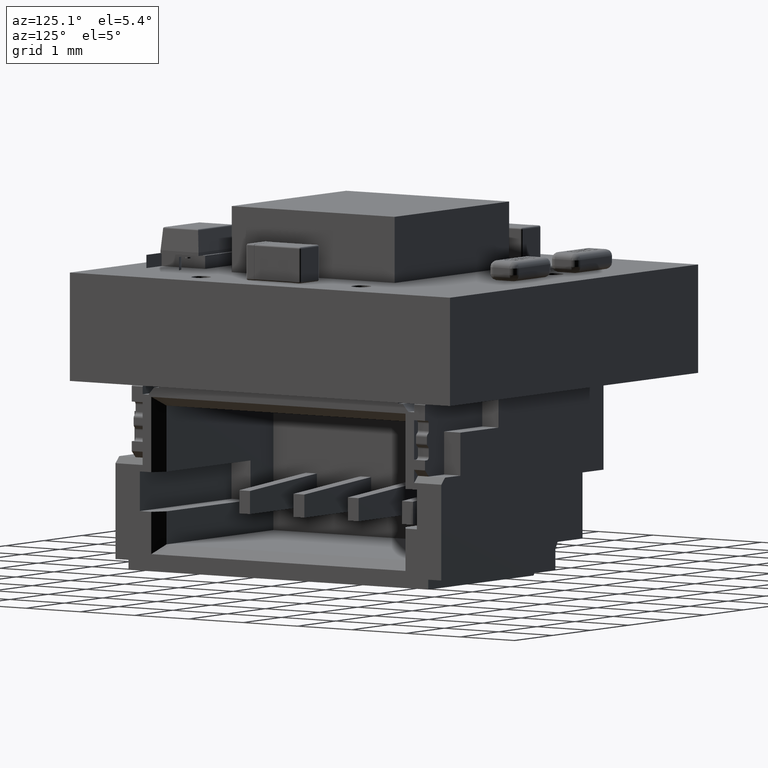
[diagram: clean part render]
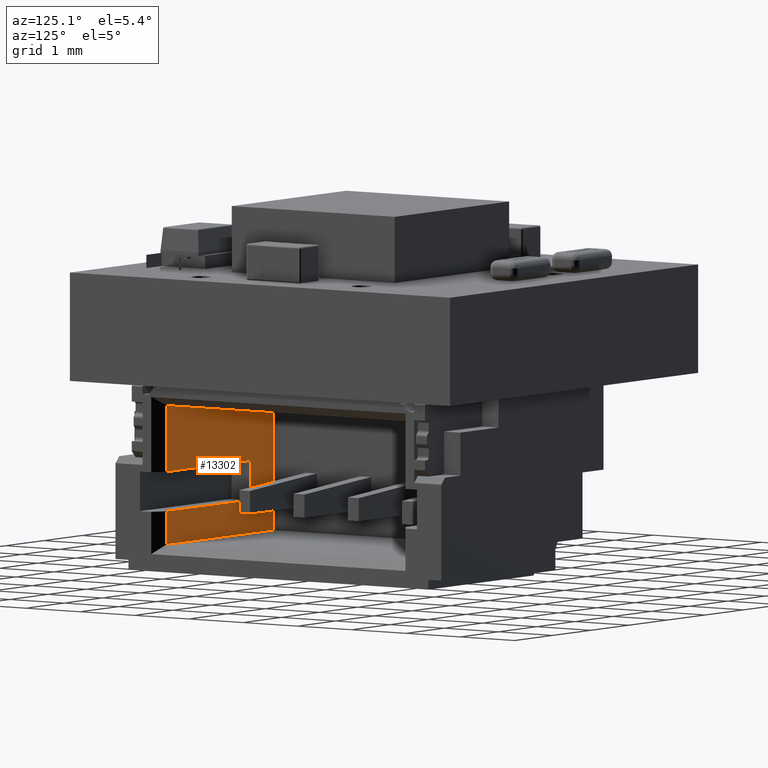
[diagram: same view with one face highlighted and labeled with its STEP entity id]
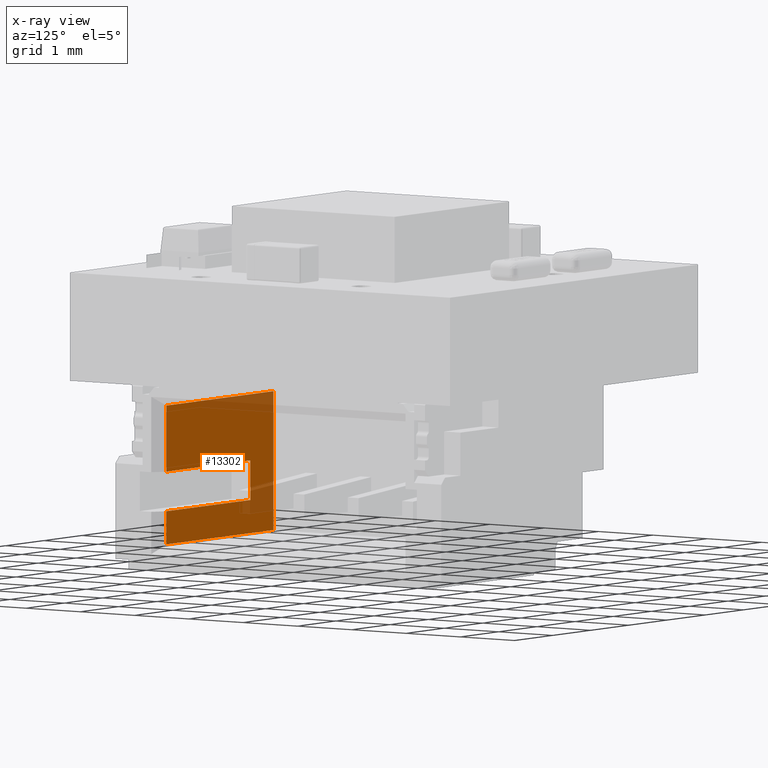
[diagram: x-ray of the same camera — body ghosted, the highlighted face saturated]
A machine part, auxiliary view. The second image highlights one B-rep face of the part: STEP entity #13302.
The next image is the same camera in x-ray: the body ghosted, the highlighted face saturated — about 15% of this face is hidden behind the body in this view.
In plain terms, the highlighted planar face has unit normal (-0, -1, -0).
Its self-contained STEP definition (entity closure, byte-faithful):
#10956 = VERTEX_POINT('',#10957);
#10957 = CARTESIAN_POINT('',(2.2,0.755,0.895));
#10963 = EDGE_CURVE('',#10956,#10964,#10966,.T.);
#10964 = VERTEX_POINT('',#10965);
#10965 = CARTESIAN_POINT('',(2.2,2.855,0.895));
#10966 = LINE('',#10967,#10968);
#10967 = CARTESIAN_POINT('',(2.2,2.855,0.895));
#10968 = VECTOR('',#10969,1.);
#10969 = DIRECTION('',(2.438091212181E-029,1.,3.491483361109E-015));
#11132 = VERTEX_POINT('',#11133);
#11133 = CARTESIAN_POINT('',(2.2,0.755,3.695));
#11139 = EDGE_CURVE('',#10956,#11132,#11140,.T.);
#11140 = LINE('',#11141,#11142);
#11141 = CARTESIAN_POINT('',(2.2,0.755,0.895));
#11142 = VECTOR('',#11143,1.);
#11143 = DIRECTION('',(-0.E+000,-3.491483361109E-015,1.));
#11161 = EDGE_CURVE('',#11162,#10964,#11164,.T.);
#11162 = VERTEX_POINT('',#11163);
#11163 = CARTESIAN_POINT('',(2.2,2.855,3.695));
#11164 = LINE('',#11165,#11166);
#11165 = CARTESIAN_POINT('',(2.2,2.855,0.895));
#11166 = VECTOR('',#11167,1.);
#11167 = DIRECTION('',(-0.E+000,3.491483361109E-015,-1.));
#12690 = VERTEX_POINT('',#12691);
#12691 = CARTESIAN_POINT('',(2.2,2.355,1.495));
#12697 = EDGE_CURVE('',#12690,#12698,#12700,.T.);
#12698 = VERTEX_POINT('',#12699);
#12699 = CARTESIAN_POINT('',(2.2,1.755,1.495));
#12700 = LINE('',#12701,#12702);
#12701 = CARTESIAN_POINT('',(2.2,2.855,1.495));
#12702 = VECTOR('',#12703,1.);
#12703 = DIRECTION('',(4.130293990421E-016,-1.,-2.926317124973E-030));
#13128 = EDGE_CURVE('',#12698,#13129,#13131,.T.);
#13129 = VERTEX_POINT('',#13130);
#13130 = CARTESIAN_POINT('',(2.2,1.755,3.695));
#13131 = LINE('',#13132,#13133);
#13132 = CARTESIAN_POINT('',(2.2,1.755,0.895));
#13133 = VECTOR('',#13134,1.);
#13134 = DIRECTION('',(7.085009279629E-015,-0.E+000,1.));
#13177 = VERTEX_POINT('',#13178);
#13178 = CARTESIAN_POINT('',(2.2,2.355,3.695));
#13184 = EDGE_CURVE('',#13177,#12690,#13185,.T.);
#13185 = LINE('',#13186,#13187);
#13186 = CARTESIAN_POINT('',(2.2,2.355,0.895));
#13187 = VECTOR('',#13188,1.);
#13188 = DIRECTION('',(-7.085009279629E-015,0.E+000,-1.));
#13302 = ADVANCED_FACE('',(#13303),#13323,.F.);
#13303 = FACE_BOUND('',#13304,.T.);
#13304 = EDGE_LOOP('',(#13305,#13306,#13312,#13313,#13314,#13315,#13321,
    #13322));
#13305 = ORIENTED_EDGE('',*,*,#11139,.T.);
#13306 = ORIENTED_EDGE('',*,*,#13307,.T.);
#13307 = EDGE_CURVE('',#11132,#13129,#13308,.T.);
#13308 = LINE('',#13309,#13310);
#13309 = CARTESIAN_POINT('',(2.2,2.855,3.695));
#13310 = VECTOR('',#13311,1.);
#13311 = DIRECTION('',(-4.130293990421E-016,1.,3.491483361109E-015));
#13312 = ORIENTED_EDGE('',*,*,#13128,.F.);
#13313 = ORIENTED_EDGE('',*,*,#12697,.F.);
#13314 = ORIENTED_EDGE('',*,*,#13184,.F.);
#13315 = ORIENTED_EDGE('',*,*,#13316,.T.);
#13316 = EDGE_CURVE('',#13177,#11162,#13317,.T.);
#13317 = LINE('',#13318,#13319);
#13318 = CARTESIAN_POINT('',(2.2,2.855,3.695));
#13319 = VECTOR('',#13320,1.);
#13320 = DIRECTION('',(-4.130293990421E-016,1.,3.491483361109E-015));
#13321 = ORIENTED_EDGE('',*,*,#11161,.T.);
#13322 = ORIENTED_EDGE('',*,*,#10963,.F.);
#13323 = PLANE('',#13324);
#13324 = AXIS2_PLACEMENT_3D('',#13325,#13326,#13327);
#13325 = CARTESIAN_POINT('',(2.2,2.855,0.895));
#13326 = DIRECTION('',(1.,4.130293990421E-016,-7.085009279629E-015));
#13327 = DIRECTION('',(-7.085009279629E-015,0.E+000,-1.));